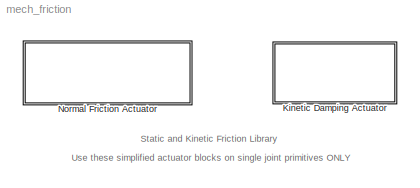
MODEL mech_friction
KIND library
CONFIG PostLoadFcn = find_system(gcs,'FollowLinks', 'on', 'LookUnderMasks', 'all');
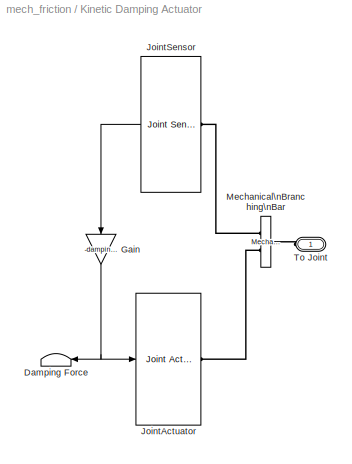
BLOCK [SubSystem] Kinetic Damping Actuator
  CopyFcn = %set_param(gcb,'LinkStatus','none');\n%set_param(gcb,'CopyFcn','');
  FunctionWithSeparateData = off
  MaskCallbackString = ||
  MaskDescription = Applies kinetic damping friction to a joint primitive. The friction force/torque is proportional to the velocity of the joint primitive and opposed to its motion. The damping coefficient mu should be positive. The applied friction force/torque is -mu*(joint primitive velocity).\n\nConnect the round mechanical connection port to an actuator port on the Joint. You can friction actuate a prismatic or...<+193ch>
  MaskEnableString = on,on,on
  MaskHideContents = off
  MaskIconFrame = on
  MaskIconOpaque = on
  MaskIconRotate = none
  MaskIconUnits = autoscale
  MaskInitialization = %mech_kineticDampingActuator(gcb,'setPrimitive');\nmech_kineticDampingActuator(gcb,'showHideFrictionForces',dForce);
  MaskPromptString = Kinetic damping coefficient|Show kinetic damping force port|Joint primitive
  MaskRunInitForIconRedraw = on
  MaskSelfModifiable = on
  MaskStyleString = edit,checkbox,popup(P1|P2|P3|R1|R2|R3)
  MaskTabNameString = ,,
  MaskToolTipString = on,on,on
  MaskTunableValueString = on,on,on
  MaskType = Kinetic Damping Actuator
  MaskValueString = 0.75|off|P1
  MaskVarAliasString = ,,
  MaskVariables = dampingCoeff=@1;dForce=@2;primitive=@3;
  MaskVisibilityString = on,on,on
  MinAlgLoopOccurrences = off
  Opaque = off
  Ports = [0, 0, 0, 0, 0, 1]
  PropExecContextOutsideSubsystem = off
  RTWSystemCode = Auto
  RequestExecContextInheritance = off
BLOCK [Terminator] Kinetic Damping Actuator/Damping Force
BLOCK [Gain] Kinetic Damping Actuator/Gain
  Gain = -dampingCoeff
  OutDataType = sfix(16)
  OutDataTypeMode = Inherit via internal rule
  OutDataTypeStr = Inherit: Inherit via internal rule
  OutScaling = 2^0
  ParamDataTypeStr = Inherit: Inherit via internal rule
  ParameterDataType = sfix(16)
  ParameterDataTypeMode = Inherit via internal rule
  ParameterScaling = 2^0
  SaturateOnIntegerOverflow = off
BLOCK [Reference] Kinetic Damping Actuator/JointActuator  REF=mblibv1/Sensors & \nActuators/Joint Actuator
  AccelerationUnits = m/s^2
  ActiveIO = off
  ActuationStyle = Force
  AngleUnits = deg
  ArcAccelerationUnits = deg/s^2
  ArcVelocityUnits = deg/s
  ClassName = JointActuator
  CoordPositionUnits = m
  DialogClass = MechanicalActuatorBlock
  DialogController = MECH.DynMechDlgSource
  ForceUnits = N
  FunctionWithSeparateData = off
  PhysicalDomain = Mechanical
  PortType = blob
  Ports = [1, 0, 0, 0, 0, 0, 1]
  Primitive = P1
  RTWMemSecDataConstants = Inherit from model
  RTWMemSecDataInternal = Inherit from model
  RTWMemSecDataParameters = Inherit from model
  RTWMemSecFuncExecute = Inherit from model
  RTWMemSecFuncInitTerm = Inherit from model
  ReferenceFrame = Absolute (INERTIAL)
  ShowPortLabels = FromPortIcon
  SourceBlock = mblibv1/Sensors & \nActuators/Joint Actuator
  SourceType = Joint Actuator
  SystemSampleTime = -1
  TorqueUnits = N-m
  VelocityUnits = m/s
  Width = 1
BLOCK [Reference] Kinetic Damping Actuator/JointSensor  REF=mblibv1/Sensors & \nActuators/Joint Sensor
  Acceleration = off
  AccelerationUnits = m/s^2
  ActiveIO = off
  Angle = off
  AngleUnits = deg
  ArcAcceleration = off
  ArcAccelerationUnits = deg/s^2
  ArcVelocity = on
  ArcVelocityUnits = rad/s
  ClassName = JointSensor
  CoordPosition = off
  CoordPositionUnits = m
  DialogClass = MechanicalSensorBlock
  DialogController = MECH.DynMechDlgSource
  Force = off
  ForceUnits = N
  FunctionWithSeparateData = off
  Muxed = off
  OutputVector = [ 1 ]
  PhysicalDomain = Mechanical
  PortType = blob
  Ports = [0, 1, 0, 0, 0, 1]
  Pose = off
  Primitive = P1
  Quaternion = on
  QuaternionDDT = off
  QuaternionDT = off
  QuaternionUnits = deg
  RTWMemSecDataConstants = Inherit from model
  RTWMemSecDataInternal = Inherit from model
  RTWMemSecDataParameters = Inherit from model
  RTWMemSecFuncExecute = Inherit from model
  RTWMemSecFuncInitTerm = Inherit from model
  ReactionForce = off
  ReactionForceUnits = N
  ReactionMoment = off
  ReactionMomentUnits = N-m
  ReactionReferenceFrame = Absolute (World)
  ReactionSensedSide = Base
  ReferenceFrame = Absolute (INERTIAL)
  ShowPortLabels = FromPortIcon
  SourceBlock = mblibv1/Sensors & \nActuators/Joint Sensor
  SourceType = Joint Sensor
  SystemSampleTime = -1
  Torque = off
  TorqueUnits = N-m
  Velocity = on
  VelocityUnits = m/s
  Width = 5
BLOCK [Reference] Kinetic Damping Actuator/Mechanical\nBranching\nBar  REF=mblibv1/Utilities/Mechanical\nBranching\nBar
  ClassName = BranchingBar
  DialogClass = MechanicalBranchingBarBlock
  DialogController = MECH.DynMechDlgSource
  LConnTagsString = _newl0
  LeftPortType = blob
  NumSAPorts = 2
  PhysicalDomain = mechanical
  Ports = [0, 0, 0, 0, 0, 1, 2]
  RConnTagsString = SA0|SA1
  RightPortType = blob
  SourceBlock = mblibv1/Utilities/Mechanical\nBranching\nBar
  SourceType = Mechanical Branching Bar
  SubClassName = Unknown
BLOCK [PMIOPort] Kinetic Damping Actuator/To Joint
  Port = 1
  Side = Left
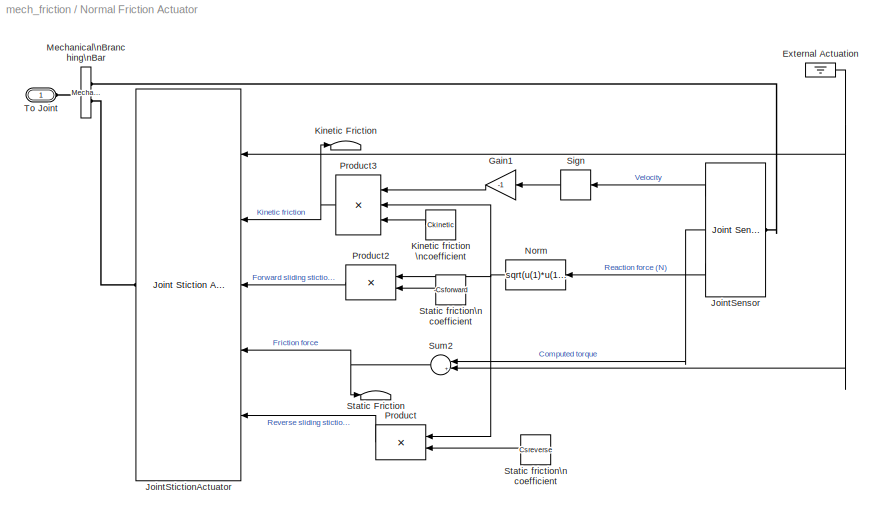
BLOCK [SubSystem] Normal Friction Actuator
  AncestorBlock = mech_friction/Normal Friction Actuator
  CopyFcn = %set_param(gcb,'LinkStatus','none');\n%set_param(gcb,'CopyFcn','');
  FunctionWithSeparateData = off
  MaskCallbackString = ||||||%populateStictionPrimitiveList(gcb);\n
  MaskDescription = Applies kinetic and static contact friction to a joint primitive. The friction force/torque is proportional to the force normal to the frictional surfaces in contact. In order for the actuated joint to be able to lock, the static friction coefficient muS must be larger than the kinetic friction coefficient muK. The friction force is mu*(normal force). The coefficient mu should be positive.\n\nConn...<+307ch>
  MaskEnableString = on,on,on,on,on,on,on
  MaskHideContents = off
  MaskIconFrame = on
  MaskIconOpaque = on
  MaskIconRotate = none
  MaskIconUnits = autoscale
  MaskInitialization = Csforward = staticFF*Ckinetic;\nCsreverse = staticFF*Ckinetic;\nmech_normalFrictionActuator(gcb,'setPrimitive');\nmech_normalFrictionActuator(gcb,'showHideActuatorSignal',sExtActuation);\nmech_normalFrictionActuator(gcb,'showHideFrictionForces',sForces);
  MaskPromptString = Kinetic friction coefficient|Static friction coefficient|Forward stiction coefficient|Reverse stiction coefficient|Show external actuation port|Show kinetic and static friction ports|Joint primitive
  MaskRunInitForIconRedraw = on
  MaskSelfModifiable = on
  MaskStyleString = edit,edit,edit,edit,checkbox,checkbox,popup(P1|P2|P3|R1|R2|R3)
  MaskTabNameString = ,,,,,,
  MaskToolTipString = on,on,on,on,on,on,on
  MaskTunableValueString = on,on,on,on,on,on,on
  MaskType = Normal Friction Actuator
  MaskValueString = 0.05|1.55|0.055|0.055|off|off|P1
  MaskVarAliasString = ,,,,,,
  MaskVariables = Ckinetic=@1;staticFF=@2;Csforward=@3;Csreverse=@4;sExtActuation=@5;sForces=@6;primitive=@7;
  MaskVisibilityString = on,on,off,off,on,on,on
  MinAlgLoopOccurrences = off
  Opaque = off
  Ports = [0, 0, 0, 0, 0, 1]
  PropExecContextOutsideSubsystem = off
  RTWSystemCode = Auto
  RequestExecContextInheritance = off
BLOCK [Ground] Normal Friction Actuator/External Actuation
BLOCK [Gain] Normal Friction Actuator/Gain1
  Gain = -1
  OutDataType = sfix(16)
  OutScaling = 2^0
  ParameterDataType = sfix(16)
  ParameterScaling = 2^0
BLOCK [Reference] Normal Friction Actuator/JointSensor  REF=mblibv1/Sensors & \nActuators/Joint Sensor
  Acceleration = off
  AccelerationUnits = m/s^2
  ActiveIO = off
  Angle = off
  AngleUnits = deg
  ArcAcceleration = off
  ArcAccelerationUnits = deg/s^2
  ArcVelocity = on
  ArcVelocityUnits = rad/s
  ClassName = JointSensor
  CoordPosition = off
  CoordPositionUnits = m
  DialogClass = MechanicalSensorBlock
  DialogController = MECH.DynMechDlgSource
  Force = on
  ForceUnits = N
  FunctionWithSeparateData = off
  Muxed = off
  OutputVector = [ 1 1 3 ]
  PhysicalDomain = Mechanical
  PortType = blob
  Ports = [0, 3, 0, 0, 0, 1]
  Pose = off
  Primitive = P1
  Quaternion = on
  QuaternionDDT = off
  QuaternionDT = off
  QuaternionUnits = deg
  RTWMemSecDataConstants = Inherit from model
  RTWMemSecDataInternal = Inherit from model
  RTWMemSecDataParameters = Inherit from model
  RTWMemSecFuncExecute = Inherit from model
  RTWMemSecFuncInitTerm = Inherit from model
  ReactionForce = on
  ReactionForceUnits = N
  ReactionMoment = off
  ReactionMomentUnits = N-m
  ReactionReferenceFrame = Absolute (World)
  ReactionSensedSide = Base
  ReferenceFrame = Absolute (INERTIAL)
  ShowPortLabels = FromPortIcon
  SourceBlock = mblibv1/Sensors & \nActuators/Joint Sensor
  SourceType = Joint Sensor
  SystemSampleTime = -1
  Torque = on
  TorqueUnits = N-m
  Velocity = on
  VelocityUnits = m/s
  Width = 5
BLOCK [Reference] Normal Friction Actuator/JointStictionActuator  REF=mblibv1/Sensors & \nActuators/Joint Stiction Actuator
  AccelerationUnits = m/s^2
  ActiveIO = off
  ActuationStyle = Force
  AngleUnits = deg
  ArcAccelerationUnits = deg/s^2
  ArcVelocityUnits = deg/s
  ClassName = JointStictionActuator
  CoordPositionUnits = m
  DialogClass = EventActuatorBlock
  DialogController = MECH.DynMechDlgSource
  ExternalForceUnits = N
  ExternalTorqueUnits = N-m
  ForceUnits = N
  FrictionalForceUnits = N
  FrictionalTorqueUnits = N-m
  FunctionWithSeparateData = off
  LockingTolerance = 1e-2
  PhysicalDomain = Mechanical
  PortType = blob
  Ports = [5, 0, 0, 0, 0, 0, 1]
  Primitive = P1
  RTWMemSecDataConstants = Inherit from model
  RTWMemSecDataInternal = Inherit from model
  RTWMemSecDataParameters = Inherit from model
  RTWMemSecFuncExecute = Inherit from model
  RTWMemSecFuncInitTerm = Inherit from model
  ShowPortLabels = FromPortIcon
  SourceBlock = mblibv1/Sensors & \nActuators/Joint Stiction Actuator
  SourceType = Joint Stiction Actuator
  SystemSampleTime = -1
  TorqueUnits = N-m
  VelocityUnits = m/s
  Width = 5
BLOCK [Terminator] Normal Friction Actuator/Kinetic Friction
BLOCK [Constant] Normal Friction Actuator/Kinetic friction \ncoefficient
  OutDataType = sfix(16)
  OutScaling = 2^0
  Value = Ckinetic
BLOCK [Reference] Normal Friction Actuator/Mechanical\nBranching\nBar  REF=mblibv1/Utilities/Mechanical\nBranching\nBar
  ClassName = BranchingBar
  DialogClass = MechanicalBranchingBarBlock
  DialogController = MECH.DynMechDlgSource
  LConnTagsString = _newl0
  LeftPortType = blob
  NumSAPorts = 2
  PhysicalDomain = mechanical
  Ports = [0, 0, 0, 0, 0, 1, 2]
  RConnTagsString = SA0|SA1
  RightPortType = blob
  SourceBlock = mblibv1/Utilities/Mechanical\nBranching\nBar
  SourceType = Mechanical Branching Bar
  SubClassName = Unknown
BLOCK [Fcn] Normal Friction Actuator/Norm
  Expr = sqrt(u(1)*u(1) + u(2)*u(2) + u(3)*u(3))
BLOCK [Product] Normal Friction Actuator/Product
  OutDataType = sfix(16)
  OutScaling = 2^0
  Ports = [2, 1]
  RndMeth = Floor
BLOCK [Product] Normal Friction Actuator/Product2
  OutDataType = sfix(16)
  OutScaling = 2^0
  Ports = [2, 1]
  RndMeth = Floor
BLOCK [Product] Normal Friction Actuator/Product3
  Inputs = 3
  OutDataType = sfix(16)
  OutScaling = 2^0
  Ports = [3, 1]
  RndMeth = Floor
BLOCK [Signum] Normal Friction Actuator/Sign
  ZeroCross = off
BLOCK [Terminator] Normal Friction Actuator/Static Friction
BLOCK [Constant] Normal Friction Actuator/Static friction\n coefficient
  OutDataType = sfix(16)
  OutScaling = 2^0
  Value = Csreverse
BLOCK [Constant] Normal Friction Actuator/Static friction\n coefficient 
  OutDataType = sfix(16)
  OutScaling = 2^0
  Value = -Csforward
BLOCK [Sum] Normal Friction Actuator/Sum2
  IconShape = round
  Inputs = |+-
  OutDataType = sfix(16)
  OutScaling = 2^0
  Ports = [2, 1]
BLOCK [PMIOPort] Normal Friction Actuator/To Joint
  Port = 1
  Side = Left
ANNOTATION (root): Static and Kinetic Friction Library
ANNOTATION (root): Use these simplified actuator blocks on single joint primitives ONLY
NET Kinetic Damping Actuator/Gain:1 -> Kinetic Damping Actuator/Damping Force:1, Kinetic Damping Actuator/JointActuator:1
LINE Kinetic Damping Actuator/JointSensor:1 -> Kinetic Damping Actuator/Gain:1
NET Normal Friction Actuator/External Actuation:1 -> Normal Friction Actuator/JointStictionActuator:1, Normal Friction Actuator/Sum2:2
LINE Normal Friction Actuator/Gain1:1 -> Normal Friction Actuator/Product3:1
LINE Normal Friction Actuator/JointSensor:1 -> Normal Friction Actuator/Sign:1
LINE Normal Friction Actuator/JointSensor:2 -> Normal Friction Actuator/Sum2:1
LINE Normal Friction Actuator/JointSensor:3 -> Normal Friction Actuator/Norm:1
LINE Normal Friction Actuator/Kinetic friction \ncoefficient:1 -> Normal Friction Actuator/Product3:3
NET Normal Friction Actuator/Norm:1 -> Normal Friction Actuator/Product2:1, Normal Friction Actuator/Product3:2, Normal Friction Actuator/Product:1
LINE Normal Friction Actuator/Product2:1 -> Normal Friction Actuator/JointStictionActuator:3
NET Normal Friction Actuator/Product3:1 -> Normal Friction Actuator/JointStictionActuator:2, Normal Friction Actuator/Kinetic Friction:1
LINE Normal Friction Actuator/Product:1 -> Normal Friction Actuator/JointStictionActuator:5
LINE Normal Friction Actuator/Sign:1 -> Normal Friction Actuator/Gain1:1
LINE Normal Friction Actuator/Static friction\n coefficient :1 -> Normal Friction Actuator/Product2:2
LINE Normal Friction Actuator/Static friction\n coefficient:1 -> Normal Friction Actuator/Product:2
NET Normal Friction Actuator/Sum2:1 -> Normal Friction Actuator/JointStictionActuator:4, Normal Friction Actuator/Static Friction:1
PLINE Kinetic Damping Actuator/JointActuator:RConn1 -- Kinetic Damping Actuator/Mechanical\nBranching\nBar:RConn2
PLINE Kinetic Damping Actuator/JointSensor:LConn1 -- Kinetic Damping Actuator/Mechanical\nBranching\nBar:RConn1
PLINE Kinetic Damping Actuator/Mechanical\nBranching\nBar:LConn1 -- Kinetic Damping Actuator/To Joint:RConn1
PLINE Normal Friction Actuator/JointSensor:LConn1 -- Normal Friction Actuator/Mechanical\nBranching\nBar:RConn1
PLINE Normal Friction Actuator/JointStictionActuator:RConn1 -- Normal Friction Actuator/Mechanical\nBranching\nBar:RConn2
PLINE Normal Friction Actuator/Mechanical\nBranching\nBar:LConn1 -- Normal Friction Actuator/To Joint:RConn1
note: NET lines group one-source signal fan-out (src -> all destinations, sorted); 1:1 wires keep LINE
